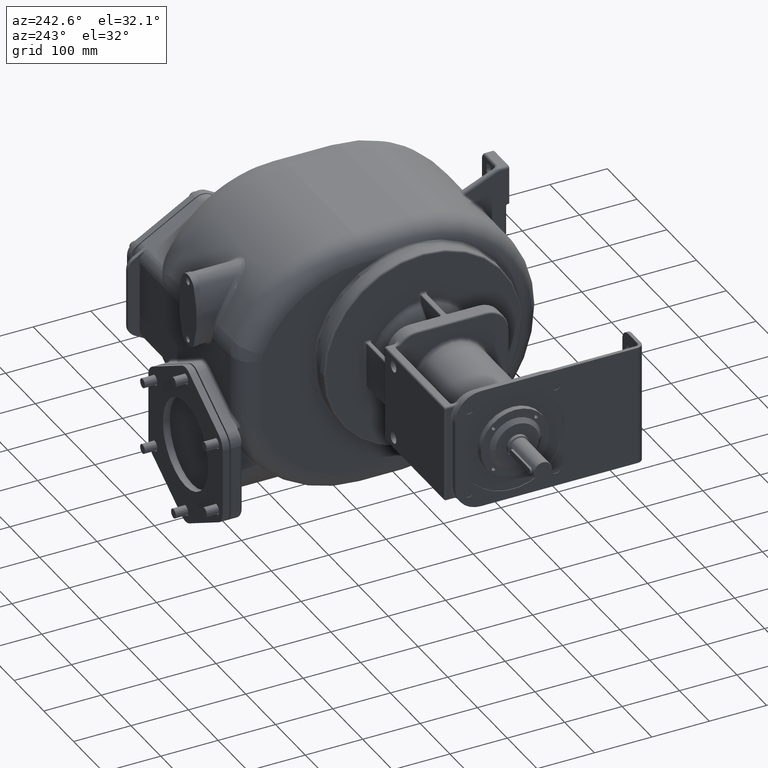
[diagram: clean part render]
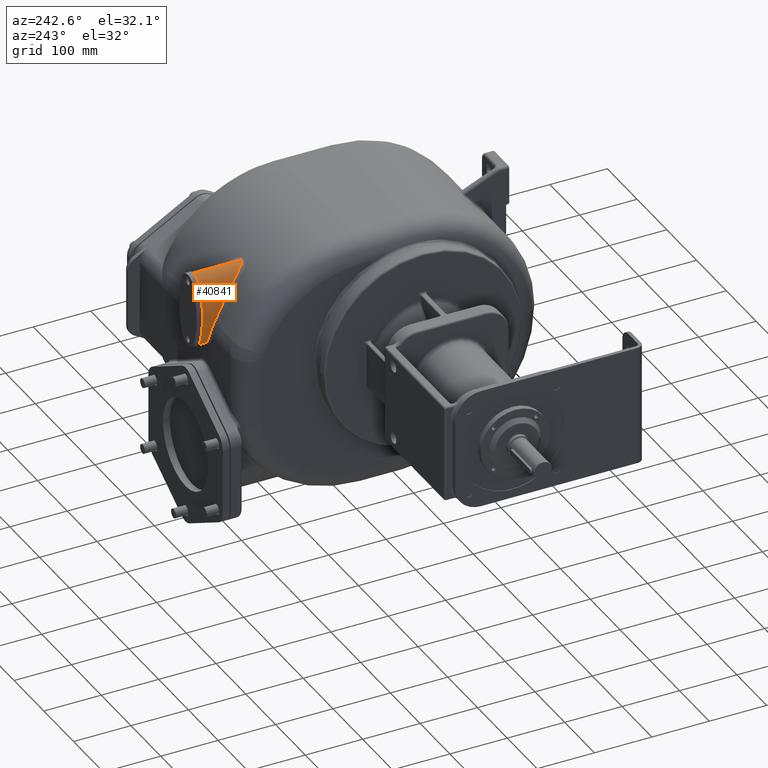
[diagram: same view with one face highlighted and labeled with its STEP entity id]
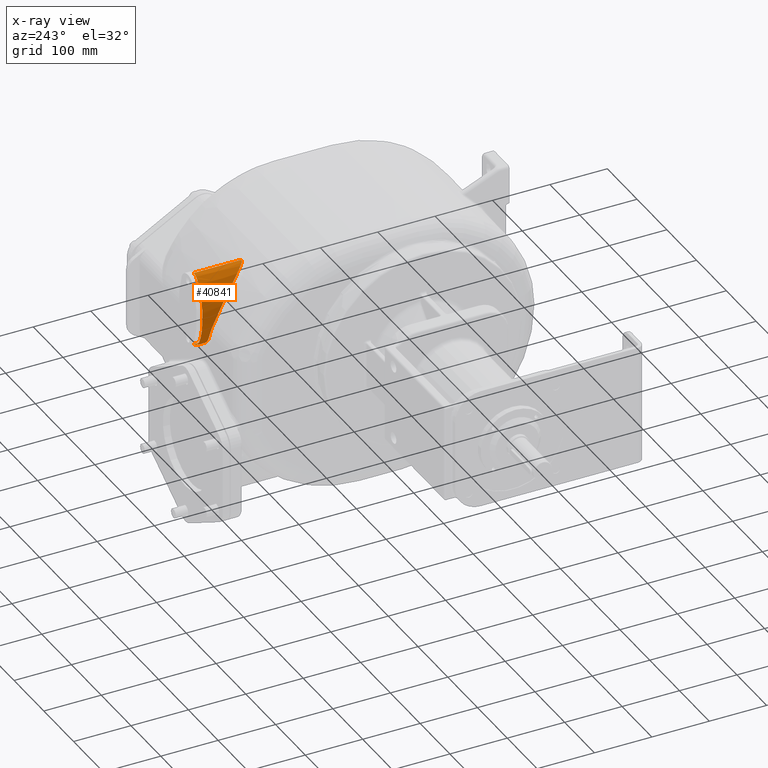
[diagram: x-ray of the same camera — body ghosted, the highlighted face saturated]
A machine part, auxiliary view. The second image highlights one B-rep face of the part: STEP entity #40841.
The next image is the same camera in x-ray: the body ghosted, the highlighted face saturated — about 0% of this face is hidden behind the body in this view.
In plain terms, the highlighted face is a SurfaceOfExtrusion surface.
Its self-contained STEP definition (entity closure, byte-faithful):
#16030=DIRECTION('',(0.E0,-1.E0,0.E0));
#16031=VECTOR('',#16030,8.265051908838E1);
#16032=CARTESIAN_POINT('',(-3.5E1,5.5E2,1.44E2));
#16033=LINE('',#16032,#16031);
#16113=CARTESIAN_POINT('',(-3.966103184337E1,5.5E2,1.432106858068E2));
#16114=CARTESIAN_POINT('',(-3.814912950606E1,5.5E2,1.437258939323E2));
#16115=CARTESIAN_POINT('',(-3.659727520801E1,5.5E2,1.44E2));
#16116=CARTESIAN_POINT('',(-3.5E1,5.5E2,1.44E2));
#16118=CARTESIAN_POINT('',(7.5E1,5.5E2,7.901E1));
#16119=DIRECTION('',(0.E0,1.E0,0.E0));
#16120=DIRECTION('',(-9.999999993641E-1,0.E0,-3.566129892870E-5));
#16121=AXIS2_PLACEMENT_3D('',#16118,#16119,#16120);
#16123=CARTESIAN_POINT('',(-6.472010696731E1,5.5E2,8.785826022694E1));
#16124=CARTESIAN_POINT('',(-6.453210363139E1,5.5E2,9.081935081010E1));
#16125=CARTESIAN_POINT('',(-6.397384926539E1,5.5E2,9.660215420334E1));
#16126=CARTESIAN_POINT('',(-6.261894921565E1,5.5E2,1.048805760900E2));
#16127=CARTESIAN_POINT('',(-6.074623279421E1,5.5E2,1.127629869704E2));
#16128=CARTESIAN_POINT('',(-5.832575870255E1,5.5E2,1.202264886041E2));
#16129=CARTESIAN_POINT('',(-5.579668316413E1,5.5E2,1.260544999354E2));
#16130=CARTESIAN_POINT('',(-5.339817940705E1,5.5E2,1.304299337417E2));
#16131=CARTESIAN_POINT('',(-5.138255971138E1,5.5E2,1.335457511678E2));
#16132=CARTESIAN_POINT('',(-4.910942079595E1,5.5E2,1.364646253319E2));
#16133=CARTESIAN_POINT('',(-4.694857674909E1,5.5E2,1.386931618421E2));
#16134=CARTESIAN_POINT('',(-4.500516430877E1,5.5E2,1.403117662393E2));
#16135=CARTESIAN_POINT('',(-4.341768780564E1,5.5E2,1.414263626354E2));
#16136=CARTESIAN_POINT('',(-4.166893095843E1,5.5E2,1.424176164823E2));
#16137=CARTESIAN_POINT('',(-4.036314850696E1,5.5E2,1.429714268275E2));
#16138=CARTESIAN_POINT('',(-3.966103184337E1,5.5E2,1.432106858068E2));
#16140=CARTESIAN_POINT('',(-6.398751303528E1,5.296957236666E2,
6.225570505364E1));
#16141=CARTESIAN_POINT('',(-6.407352949365E1,5.294212569527E2,
6.295476024573E1));
#16142=CARTESIAN_POINT('',(-6.423499161383E1,5.288613834479E2,
6.436072268062E1));
#16143=CARTESIAN_POINT('',(-6.444500103993E1,5.279882017365E2,
6.649144438663E1));
#16144=CARTESIAN_POINT('',(-6.462220034269E1,5.270820922718E2,
6.863982950785E1));
#16145=CARTESIAN_POINT('',(-6.476616521290E1,5.261433279637E2,
7.080247253430E1));
#16146=CARTESIAN_POINT('',(-6.487656923910E1,5.251723284520E2,
7.297595278657E1));
#16147=CARTESIAN_POINT('',(-6.495319126606E1,5.241695413920E2,
7.515696908389E1));
#16148=CARTESIAN_POINT('',(-6.499589886287E1,5.231356230947E2,
7.734208594331E1));
#16149=CARTESIAN_POINT('',(-6.500465893294E1,5.220714068531E2,
7.952779037696E1));
#16150=CARTESIAN_POINT('',(-6.497954220934E1,5.209778150036E2,
8.171061673180E1));
#16151=CARTESIAN_POINT('',(-6.492070370080E1,5.198557197157E2,
8.388756796714E1));
#16152=CARTESIAN_POINT('',(-6.482836194525E1,5.187060281706E2,
8.605578543522E1));
#16153=CARTESIAN_POINT('',(-6.470279880585E1,5.175297442944E2,
8.821243928898E1));
#16154=CARTESIAN_POINT('',(-6.454436054706E1,5.163280393803E2,
9.035471487905E1));
#16155=CARTESIAN_POINT('',(-6.435345568866E1,5.151021498031E2,
9.247985064680E1));
#16156=CARTESIAN_POINT('',(-6.413055203537E1,5.138534244843E2,
9.458515355608E1));
#16157=CARTESIAN_POINT('',(-6.387617431661E1,5.125833346688E2,
9.666800231307E1));
#16158=CARTESIAN_POINT('',(-6.359090490752E1,5.112934107673E2,
9.872583047304E1));
#16159=CARTESIAN_POINT('',(-6.327538575991E1,5.099853363384E2,
1.007561156723E2));
#16160=CARTESIAN_POINT('',(-6.293032027423E1,5.086609023051E2,
1.027563785122E2));
#16161=CARTESIAN_POINT('',(-6.255647167558E1,5.073219675417E2,
1.047242020099E2));
#16162=CARTESIAN_POINT('',(-6.215466553754E1,5.059705746258E2,
1.066572245825E2));
#16163=CARTESIAN_POINT('',(-6.172579486454E1,5.046088364646E2,
1.085531295327E2));
#16164=CARTESIAN_POINT('',(-6.127081355963E1,5.032389571957E2,
1.104096891440E2));
#16165=CARTESIAN_POINT('',(-6.079072112913E1,5.018632612435E2,
1.122248210597E2));
#16166=CARTESIAN_POINT('',(-6.028658669328E1,5.004840859456E2,
1.139964913823E2));
#16167=CARTESIAN_POINT('',(-5.975956561227E1,4.991040035804E2,
1.157226819251E2));
#16168=CARTESIAN_POINT('',(-5.921092649391E1,4.977258227398E2,
1.174013446486E2));
#16169=CARTESIAN_POINT('',(-5.864203236910E1,4.963523392167E2,
1.190305056128E2));
#16170=CARTESIAN_POINT('',(-5.805434471513E1,4.949865986668E2,
1.206082756190E2));
#16171=CARTESIAN_POINT('',(-5.744945272713E1,4.936317067112E2,
1.221328010021E2));
#16172=CARTESIAN_POINT('',(-5.682906985676E1,4.922908130938E2,
1.236023215321E2));
#16173=CARTESIAN_POINT('',(-5.619489369456E1,4.909670581226E2,
1.250154947647E2));
#16174=CARTESIAN_POINT('',(-5.554880168413E1,4.896635663606E2,
1.263709361848E2));
#16175=CARTESIAN_POINT('',(-5.489268771818E1,4.883834100764E2,
1.276676153689E2));
#16176=CARTESIAN_POINT('',(-5.422835271734E1,4.871293629438E2,
1.289049967071E2));
#16177=CARTESIAN_POINT('',(-5.355783233489E1,4.859042088497E2,
1.300824132667E2));
#16178=CARTESIAN_POINT('',(-5.288294445230E1,4.847105629201E2,
1.311998864298E2));
#16179=CARTESIAN_POINT('',(-5.220559767593E1,4.835507833003E2,
1.322575105633E2));
#16180=CARTESIAN_POINT('',(-5.152777759640E1,4.824272611419E2,
1.332555182517E2));
#16181=CARTESIAN_POINT('',(-5.085135444617E1,4.813422940430E2,
1.341945372204E2));
#16182=CARTESIAN_POINT('',(-5.017847192138E1,4.802979819425E2,
1.350750451064E2));
#16183=CARTESIAN_POINT('',(-4.951104440673E1,4.792964614709E2,
1.358980585320E2));
#16184=CARTESIAN_POINT('',(-4.885121169045E1,4.783395225587E2,
1.366645125279E2));
#16185=CARTESIAN_POINT('',(-4.820102108075E1,4.774289387549E2,
1.373756778962E2));
#16186=CARTESIAN_POINT('',(-4.756237796573E1,4.765660532394E2,
1.380331416247E2));
#16187=CARTESIAN_POINT('',(-4.693741230409E1,4.757520469096E2,
1.386384277155E2));
#16188=CARTESIAN_POINT('',(-4.632761557348E1,4.749874770866E2,
1.391937952421E2));
#16189=CARTESIAN_POINT('',(-4.573483079949E1,4.742725353141E2,
1.397012333367E2));
#16190=CARTESIAN_POINT('',(-4.516018616651E1,4.736070023861E2,
1.401633843385E2));
#16191=CARTESIAN_POINT('',(-4.460493357605E1,4.729900245733E2,
1.405827353562E2));
#16192=CARTESIAN_POINT('',(-4.406979670635E1,4.724205308480E2,
1.409621146284E2));
#16193=CARTESIAN_POINT('',(-4.355512278482E1,4.718966145132E2,
1.413044621868E2));
#16194=CARTESIAN_POINT('',(-4.306110534207E1,4.714163453978E2,
1.416126416502E2));
#16195=CARTESIAN_POINT('',(-4.258735465473E1,4.709772681310E2,
1.418896635604E2));
#16196=CARTESIAN_POINT('',(-4.213342448063E1,4.705767390589E2,
1.421383154245E2));
#16197=CARTESIAN_POINT('',(-4.169855873468E1,4.702122584498E2,
1.423613070130E2));
#16198=CARTESIAN_POINT('',(-4.128187944316E1,4.698810143018E2,
1.425611517228E2));
#16199=CARTESIAN_POINT('',(-4.088236701489E1,4.695804990291E2,
1.427401809261E2));
#16200=CARTESIAN_POINT('',(-4.049906360083E1,4.693082680328E2,
1.429004679111E2));
#16201=CARTESIAN_POINT('',(-4.013071270458E1,4.690618401011E2,
1.430439899097E2));
#16202=CARTESIAN_POINT('',(-3.977639205995E1,4.688392028198E2,
1.431723875911E2));
#16203=CARTESIAN_POINT('',(-3.943493561869E1,4.686382781794E2,
1.432872191442E2));
#16204=CARTESIAN_POINT('',(-3.910522554867E1,4.684572022386E2,
1.433898481750E2));
#16205=CARTESIAN_POINT('',(-3.878644739969E1,4.682944484324E2,
1.434814031010E2));
#16206=CARTESIAN_POINT('',(-3.847744336144E1,4.681484531479E2,
1.435629836661E2));
#16207=CARTESIAN_POINT('',(-3.817737060395E1,4.680178913415E2,
1.436354768538E2));
#16208=CARTESIAN_POINT('',(-3.788540636824E1,4.679016505745E2,
1.436996701908E2));
#16209=CARTESIAN_POINT('',(-3.760052384202E1,4.677986193908E2,
1.437562948113E2));
#16210=CARTESIAN_POINT('',(-3.732216555320E1,4.677079305105E2,
1.438059004741E2));
#16211=CARTESIAN_POINT('',(-3.704965709699E1,4.676288609064E2,
1.438489988994E2));
#16212=CARTESIAN_POINT('',(-3.678225570662E1,4.675606572323E2,
1.438860442104E2));
#16213=CARTESIAN_POINT('',(-3.651921522768E1,4.675026956691E2,
1.439174258231E2));
#16214=CARTESIAN_POINT('',(-3.625958704879E1,4.674544713314E2,
1.439434866336E2));
#16215=CARTESIAN_POINT('',(-3.600279922805E1,4.674155633019E2,
1.439644627821E2));
#16216=CARTESIAN_POINT('',(-3.574870826057E1,4.673857159015E2,
1.439805245076E2));
#16217=CARTESIAN_POINT('',(-3.549701846210E1,4.673646870041E2,
1.439918348086E2));
#16218=CARTESIAN_POINT('',(-3.524749264745E1,4.673522166432E2,
1.439985322754E2));
#16219=CARTESIAN_POINT('',(-3.508228757037E1,4.673494808430E2,
1.439999999148E2));
#16220=CARTESIAN_POINT('',(-3.5E1,4.673494809116E2,1.44E2));
#16222=CARTESIAN_POINT('',(-5.760023080432E1,5.343677368501E2,
3.625403973931E1));
#16223=CARTESIAN_POINT('',(-5.774575781442E1,5.343754709181E2,
3.661523898136E1));
#16224=CARTESIAN_POINT('',(-5.803264482870E1,5.343850431062E2,
3.734342960817E1));
#16225=CARTESIAN_POINT('',(-5.845056363898E1,5.343809689313E2,
3.845286489599E1));
#16226=CARTESIAN_POINT('',(-5.885543755180E1,5.343577275603E2,
3.957727049665E1));
#16227=CARTESIAN_POINT('',(-5.924711242484E1,5.343146430646E2,
4.071554771470E1));
#16228=CARTESIAN_POINT('',(-5.962527500089E1,5.342511619423E2,
4.186604596077E1));
#16229=CARTESIAN_POINT('',(-5.998972599730E1,5.341667589816E2,
4.302728020326E1));
#16230=CARTESIAN_POINT('',(-6.034037727221E1,5.340609780538E2,
4.419799705672E1));
#16231=CARTESIAN_POINT('',(-6.067725541292E1,5.339334023509E2,
4.537725306140E1));
#16232=CARTESIAN_POINT('',(-6.100038365662E1,5.337836117311E2,
4.656405414848E1));
#16233=CARTESIAN_POINT('',(-6.130979315221E1,5.336112701705E2,
4.775738049089E1));
#16234=CARTESIAN_POINT('',(-6.160552717305E1,5.334160790045E2,
4.895620025844E1));
#16235=CARTESIAN_POINT('',(-6.188764832108E1,5.331977519676E2,
5.015949568709E1));
#16236=CARTESIAN_POINT('',(-6.215626740014E1,5.329560563344E2,
5.136640389232E1));
#16237=CARTESIAN_POINT('',(-6.241150230606E1,5.326907619920E2,
5.257606148935E1));
#16238=CARTESIAN_POINT('',(-6.265348854906E1,5.324016541215E2,
5.378765217338E1));
#16239=CARTESIAN_POINT('',(-6.288238847961E1,5.320885524191E2,
5.500047125842E1));
#16240=CARTESIAN_POINT('',(-6.309837094978E1,5.317512490777E2,
5.621384298839E1));
#16241=CARTESIAN_POINT('',(-6.330157858265E1,5.313896204085E2,
5.742692251274E1));
#16242=CARTESIAN_POINT('',(-6.349213860510E1,5.310036451887E2,
5.863869942256E1));
#16243=CARTESIAN_POINT('',(-6.367020054588E1,5.305933003653E2,
5.984820254995E1));
#16244=CARTESIAN_POINT('',(-6.383593228217E1,5.301586295721E2,
6.105449574453E1));
#16245=CARTESIAN_POINT('',(-6.393830972538E1,5.298527225742E2,
6.185583224438E1));
#16246=CARTESIAN_POINT('',(-6.398751303528E1,5.296957236666E2,
6.225570505364E1));
#16248=CARTESIAN_POINT('',(-3.5E1,5.340003076231E2,1.400000025913E1));
#16249=CARTESIAN_POINT('',(-3.514508139363E1,5.340002052080E2,
1.399999992704E1));
#16250=CARTESIAN_POINT('',(-3.543541369180E1,5.340000513192E2,
1.400456217099E1));
#16251=CARTESIAN_POINT('',(-3.587112623772E1,5.339999744518E2,
1.402511817605E1));
#16252=CARTESIAN_POINT('',(-3.630756809037E1,5.340000520007E2,
1.405946557138E1));
#16253=CARTESIAN_POINT('',(-3.674502665648E1,5.340002854455E2,
1.410773418400E1));
#16254=CARTESIAN_POINT('',(-3.718381262427E1,5.340006757011E2,
1.417009988057E1));
#16255=CARTESIAN_POINT('',(-3.762424524230E1,5.340012245075E2,
1.424679065929E1));
#16256=CARTESIAN_POINT('',(-3.806665949016E1,5.340019349744E2,
1.433809018728E1));
#16257=CARTESIAN_POINT('',(-3.851134568056E1,5.340028108968E2,
1.444432549453E1));
#16258=CARTESIAN_POINT('',(-3.895865392799E1,5.340038573589E2,
1.456589202671E1));
#16259=CARTESIAN_POINT('',(-3.940886788685E1,5.340050807417E2,
1.470322533911E1));
#16260=CARTESIAN_POINT('',(-3.986229095471E1,5.340064881660E2,
1.485682087604E1));
#16261=CARTESIAN_POINT('',(-4.031926194047E1,5.340080888821E2,
1.502724874877E1));
#16262=CARTESIAN_POINT('',(-4.078002839131E1,5.340098932108E2,
1.521510686504E1));
#16263=CARTESIAN_POINT('',(-4.124492305849E1,5.340119131479E2,
1.542108967131E1));
#16264=CARTESIAN_POINT('',(-4.171422229966E1,5.340141631201E2,
1.564593875783E1));
#16265=CARTESIAN_POINT('',(-4.218817342937E1,5.340166588335E2,
1.589044815804E1));
#16266=CARTESIAN_POINT('',(-4.266708652640E1,5.340194189664E2,
1.615551904533E1));
#16267=CARTESIAN_POINT('',(-4.315115982991E1,5.340224649053E2,
1.644206904978E1));
#16268=CARTESIAN_POINT('',(-4.364065119427E1,5.340258207499E2,
1.675112662280E1));
#16269=CARTESIAN_POINT('',(-4.413578794247E1,5.340295145071E2,
1.708379014487E1));
#16270=CARTESIAN_POINT('',(-4.463672513518E1,5.340335776314E2,
1.744119478044E1));
#16271=CARTESIAN_POINT('',(-4.514367906066E1,5.340380456090E2,
1.782461085928E1));
#16272=CARTESIAN_POINT('',(-4.565676527776E1,5.340429622226E2,
1.823533312742E1));
#16273=CARTESIAN_POINT('',(-4.617609933106E1,5.340483788269E2,
1.867475303150E1));
#16274=CARTESIAN_POINT('',(-4.670177781195E1,5.340543545931E2,
1.914435491082E1));
#16275=CARTESIAN_POINT('',(-4.723381075542E1,5.340609410196E2,
1.964565540410E1));
#16276=CARTESIAN_POINT('',(-4.777223256953E1,5.340681956858E2,
2.018030864202E1));
#16277=CARTESIAN_POINT('',(-4.831698798127E1,5.340761804400E2,
2.075000547354E1));
#16278=CARTESIAN_POINT('',(-4.886798698657E1,5.340849524474E2,
2.135652492555E1));
#16279=CARTESIAN_POINT('',(-4.942510248824E1,5.340945764442E2,
2.200174143144E1));
#16280=CARTESIAN_POINT('',(-4.998811184793E1,5.341051192261E2,
2.268755836155E1));
#16281=CARTESIAN_POINT('',(-5.055676875779E1,5.341166509277E2,
2.341599511473E1));
#16282=CARTESIAN_POINT('',(-5.113071220084E1,5.341292465108E2,
2.418907717443E1));
#16283=CARTESIAN_POINT('',(-5.170953362744E1,5.341429885724E2,
2.500891901942E1));
#16284=CARTESIAN_POINT('',(-5.229272120830E1,5.341579677987E2,
2.587765311782E1));
#16285=CARTESIAN_POINT('',(-5.287962953232E1,5.341742791552E2,
2.679736823378E1));
#16286=CARTESIAN_POINT('',(-5.346959654978E1,5.341920306828E2,
2.777028924458E1));
#16287=CARTESIAN_POINT('',(-5.406180250587E1,5.342113385365E2,
2.879855501183E1));
#16288=CARTESIAN_POINT('',(-5.465536908373E1,5.342323282666E2,
2.988436960974E1));
#16289=CARTESIAN_POINT('',(-5.524926317473E1,5.342551376371E2,
3.102983725568E1));
#16290=CARTESIAN_POINT('',(-5.584214142946E1,5.342799089971E2,
3.223659104065E1));
#16291=CARTESIAN_POINT('',(-5.643267743515E1,5.343067860077E2,
3.350638594366E1));
#16292=CARTESIAN_POINT('',(-5.701951082567E1,5.343358788764E2,
3.484102113391E1));
#16293=CARTESIAN_POINT('',(-5.740741393877E1,5.343568477857E2,
3.577547828721E1));
#16294=CARTESIAN_POINT('',(-5.760023080432E1,5.343677368501E2,
3.625403973931E1));
#16296=DIRECTION('',(-7.460842170952E-14,-1.E0,1.619623621954E-8));
#16297=VECTOR('',#16296,1.599969237688E1);
#16298=CARTESIAN_POINT('',(-3.5E1,5.5E2,1.4E1));
#16299=LINE('',#16298,#16297);
#16300=CARTESIAN_POINT('',(-3.981962421567E1,5.5E2,1.484430037684E1));
#16301=CARTESIAN_POINT('',(-4.047067438299E1,5.5E2,1.507390286553E1));
#16302=CARTESIAN_POINT('',(-4.168958436229E1,5.5E2,1.559786199104E1));
#16303=CARTESIAN_POINT('',(-4.333536295833E1,5.5E2,1.652592322453E1));
#16304=CARTESIAN_POINT('',(-4.483841490030E1,5.5E2,1.756508078476E1));
#16305=CARTESIAN_POINT('',(-4.668729124931E1,5.5E2,1.907142407293E1));
#16306=CARTESIAN_POINT('',(-4.875566895807E1,5.5E2,2.114328108971E1));
#16307=CARTESIAN_POINT('',(-5.094519639554E1,5.5E2,2.385720729708E1));
#16308=CARTESIAN_POINT('',(-5.289796122294E1,5.5E2,2.675542603525E1));
#16309=CARTESIAN_POINT('',(-5.523519848307E1,5.5E2,3.082711780325E1));
#16310=CARTESIAN_POINT('',(-5.772386443604E1,5.5E2,3.625368041806E1));
#16311=CARTESIAN_POINT('',(-6.014468494369E1,5.5E2,4.320579364137E1));
#16312=CARTESIAN_POINT('',(-6.206484884717E1,5.5E2,5.054761059629E1));
#16313=CARTESIAN_POINT('',(-6.351692758333E1,5.5E2,5.825377815578E1));
#16314=CARTESIAN_POINT('',(-6.417794925780E1,5.5E2,6.363021146372E1));
#16315=CARTESIAN_POINT('',(-6.442914772397E1,5.5E2,6.638016369994E1));
#16332=CARTESIAN_POINT('',(-3.5E1,5.5E2,1.4E1));
#16333=CARTESIAN_POINT('',(-3.665471331296E1,5.5E2,1.4E1));
#16334=CARTESIAN_POINT('',(-3.825911025407E1,5.5E2,1.429396200477E1));
#16335=CARTESIAN_POINT('',(-3.981962421567E1,5.5E2,1.484430037684E1));
#16571=CARTESIAN_POINT('',(-6.442914772401E1,5.5E2,6.638016370033E1));
#16572=CARTESIAN_POINT('',(-6.481275484510E1,5.5E2,7.057963703550E1));
#16573=CARTESIAN_POINT('',(-6.500014984757E1,5.5E2,7.478804990192E1));
#16574=CARTESIAN_POINT('',(-6.499999991098E1,5.5E2,7.900500741815E1));
#19141=VERTEX_POINT('',#16140);
#19142=VERTEX_POINT('',#16220);
#19145=CARTESIAN_POINT('',(-3.5E1,5.5E2,1.4E1));
#19146=CARTESIAN_POINT('',(-3.5E1,5.340003076231E2,1.400000025913E1));
#19147=VERTEX_POINT('',#19145);
#19148=VERTEX_POINT('',#19146);
#19149=CARTESIAN_POINT('',(-3.5E1,5.5E2,1.44E2));
#19150=VERTEX_POINT('',#19149);
#19268=VERTEX_POINT('',#16294);
#20811=CARTESIAN_POINT('',(-3.981962421567E1,5.5E2,1.484430037684E1));
#20813=VERTEX_POINT('',#20811);
#20814=CARTESIAN_POINT('',(-6.442914772401E1,5.5E2,6.638016370033E1));
#20815=CARTESIAN_POINT('',(-6.499999991098E1,5.5E2,7.900500741815E1));
#20816=VERTEX_POINT('',#20814);
#20817=VERTEX_POINT('',#20815);
#20818=CARTESIAN_POINT('',(-6.472010696727E1,5.5E2,8.785826022754E1));
#20819=VERTEX_POINT('',#20818);
#20820=CARTESIAN_POINT('',(-3.966103184337E1,5.5E2,1.432106858068E2));
#20822=VERTEX_POINT('',#20820);
#40816=CARTESIAN_POINT('',(-3.5E1,5.5E2,7.9E1));
#40817=DIRECTION('',(0.E0,1.E0,0.E0));
#40818=DIRECTION('',(0.E0,0.E0,-1.E0));
#40819=AXIS2_PLACEMENT_3D('',#40816,#40817,#40818);
#40821=DIRECTION('',(0.E0,1.E0,0.E0));
#40822=VECTOR('',#40821,1.E0);
#40823=SURFACE_OF_LINEAR_EXTRUSION('',#40820,#40822);
#40824=ORIENTED_EDGE('',*,*,#40763,.T.);
#40826=ORIENTED_EDGE('',*,*,#40825,.T.);
#40827=ORIENTED_EDGE('',*,*,#40811,.T.);
#40828=ORIENTED_EDGE('',*,*,#40702,.T.);
#40829=ORIENTED_EDGE('',*,*,#26299,.F.);
#40830=ORIENTED_EDGE('',*,*,#26364,.F.);
#40831=ORIENTED_EDGE('',*,*,#40365,.F.);
#40832=ORIENTED_EDGE('',*,*,#40697,.F.);
#40834=ORIENTED_EDGE('',*,*,#40833,.T.);
#40836=ORIENTED_EDGE('',*,*,#40835,.T.);
#40838=ORIENTED_EDGE('',*,*,#40837,.T.);
#40839=EDGE_LOOP('',(#40824,#40826,#40827,#40828,#40829,#40830,#40831,#40832,
#40834,#40836,#40838));
#40840=FACE_OUTER_BOUND('',#40839,.F.);
#40841=ADVANCED_FACE('',(#40840),#40823,.T.);
#16117=B_SPLINE_CURVE_WITH_KNOTS('',3,(#16113,#16114,#16115,#16116),
.UNSPECIFIED.,.F.,.F.,(4,4),(0.E0,1.E0),.UNSPECIFIED.);
#16122=CIRCLE('',#16121,1.4E2);
#16139=B_SPLINE_CURVE_WITH_KNOTS('',3,(#16123,#16124,#16125,#16126,#16127,
#16128,#16129,#16130,#16131,#16132,#16133,#16134,#16135,#16136,#16137,#16138),
.UNSPECIFIED.,.F.,.F.,(4,1,1,1,1,1,1,1,1,1,1,1,1,4),(0.E0,1.25E-1,2.5E-1,
3.75E-1,5.E-1,6.25E-1,6.875E-1,7.5E-1,8.125E-1,8.75E-1,9.0625E-1,9.375E-1,
9.6875E-1,1.E0),.UNSPECIFIED.);
#16221=B_SPLINE_CURVE_WITH_KNOTS('',3,(#16140,#16141,#16142,#16143,#16144,
#16145,#16146,#16147,#16148,#16149,#16150,#16151,#16152,#16153,#16154,#16155,
#16156,#16157,#16158,#16159,#16160,#16161,#16162,#16163,#16164,#16165,#16166,
#16167,#16168,#16169,#16170,#16171,#16172,#16173,#16174,#16175,#16176,#16177,
#16178,#16179,#16180,#16181,#16182,#16183,#16184,#16185,#16186,#16187,#16188,
#16189,#16190,#16191,#16192,#16193,#16194,#16195,#16196,#16197,#16198,#16199,
#16200,#16201,#16202,#16203,#16204,#16205,#16206,#16207,#16208,#16209,#16210,
#16211,#16212,#16213,#16214,#16215,#16216,#16217,#16218,#16219,#16220),
.UNSPECIFIED.,.F.,.F.,(4,1,1,1,1,1,1,1,1,1,1,1,1,1,1,1,1,1,1,1,1,1,1,1,1,1,1,1,
1,1,1,1,1,1,1,1,1,1,1,1,1,1,1,1,1,1,1,1,1,1,1,1,1,1,1,1,1,1,1,1,1,1,1,1,1,1,1,1,
1,1,1,1,1,1,1,1,1,1,4),(0.E0,1.282051282051E-2,2.564102564103E-2,
3.846153846154E-2,5.128205128205E-2,6.410256410256E-2,7.692307692308E-2,
8.974358974359E-2,1.025641025641E-1,1.153846153846E-1,1.282051282051E-1,
1.410256410256E-1,1.538461538462E-1,1.666666666667E-1,1.794871794872E-1,
1.923076923077E-1,2.051282051282E-1,2.179487179487E-1,2.307692307692E-1,
2.435897435897E-1,2.564102564103E-1,2.692307692308E-1,2.820512820513E-1,
2.948717948718E-1,3.076923076923E-1,3.205128205128E-1,3.333333333333E-1,
3.461538461538E-1,3.589743589744E-1,3.717948717949E-1,3.846153846154E-1,
3.974358974359E-1,4.102564102564E-1,4.230769230769E-1,4.358974358974E-1,
4.487179487179E-1,4.615384615385E-1,4.743589743590E-1,4.871794871795E-1,5.E-1,
5.128205128205E-1,5.256410256410E-1,5.384615384615E-1,5.512820512821E-1,
5.641025641026E-1,5.769230769231E-1,5.897435897436E-1,6.025641025641E-1,
6.153846153846E-1,6.282051282051E-1,6.410256410256E-1,6.538461538462E-1,
6.666666666667E-1,6.794871794872E-1,6.923076923077E-1,7.051282051282E-1,
7.179487179487E-1,7.307692307692E-1,7.435897435897E-1,7.564102564103E-1,
7.692307692308E-1,7.820512820513E-1,7.948717948718E-1,8.076923076923E-1,
8.205128205128E-1,8.333333333333E-1,8.461538461538E-1,8.589743589744E-1,
8.717948717949E-1,8.846153846154E-1,8.974358974359E-1,9.102564102564E-1,
9.230769230769E-1,9.358974358974E-1,9.487179487179E-1,9.615384615385E-1,
9.743589743590E-1,9.871794871795E-1,1.E0),.UNSPECIFIED.);
#16247=B_SPLINE_CURVE_WITH_KNOTS('',3,(#16222,#16223,#16224,#16225,#16226,
#16227,#16228,#16229,#16230,#16231,#16232,#16233,#16234,#16235,#16236,#16237,
#16238,#16239,#16240,#16241,#16242,#16243,#16244,#16245,#16246),.UNSPECIFIED.,
.F.,.F.,(4,1,1,1,1,1,1,1,1,1,1,1,1,1,1,1,1,1,1,1,1,1,4),(0.E0,4.545454545455E-2,
9.090909090909E-2,1.363636363636E-1,1.818181818182E-1,2.272727272727E-1,
2.727272727273E-1,3.181818181818E-1,3.636363636364E-1,4.090909090909E-1,
4.545454545455E-1,5.E-1,5.454545454545E-1,5.909090909091E-1,6.363636363636E-1,
6.818181818182E-1,7.272727272727E-1,7.727272727273E-1,8.181818181818E-1,
8.636363636364E-1,9.090909090909E-1,9.545454545455E-1,1.E0),.UNSPECIFIED.);
#16295=B_SPLINE_CURVE_WITH_KNOTS('',3,(#16248,#16249,#16250,#16251,#16252,
#16253,#16254,#16255,#16256,#16257,#16258,#16259,#16260,#16261,#16262,#16263,
#16264,#16265,#16266,#16267,#16268,#16269,#16270,#16271,#16272,#16273,#16274,
#16275,#16276,#16277,#16278,#16279,#16280,#16281,#16282,#16283,#16284,#16285,
#16286,#16287,#16288,#16289,#16290,#16291,#16292,#16293,#16294),.UNSPECIFIED.,
.F.,.F.,(4,1,1,1,1,1,1,1,1,1,1,1,1,1,1,1,1,1,1,1,1,1,1,1,1,1,1,1,1,1,1,1,1,1,1,
1,1,1,1,1,1,1,1,1,4),(0.E0,2.272727272727E-2,4.545454545455E-2,
6.818181818182E-2,9.090909090909E-2,1.136363636364E-1,1.363636363636E-1,
1.590909090909E-1,1.818181818182E-1,2.045454545455E-1,2.272727272727E-1,2.5E-1,
2.727272727273E-1,2.954545454545E-1,3.181818181818E-1,3.409090909091E-1,
3.636363636364E-1,3.863636363636E-1,4.090909090909E-1,4.318181818182E-1,
4.545454545455E-1,4.772727272727E-1,5.E-1,5.227272727273E-1,5.454545454545E-1,
5.681818181818E-1,5.909090909091E-1,6.136363636364E-1,6.363636363636E-1,
6.590909090909E-1,6.818181818182E-1,7.045454545455E-1,7.272727272727E-1,7.5E-1,
7.727272727273E-1,7.954545454545E-1,8.181818181818E-1,8.409090909091E-1,
8.636363636364E-1,8.863636363636E-1,9.090909090909E-1,9.318181818182E-1,
9.545454545455E-1,9.772727272727E-1,1.E0),.UNSPECIFIED.);
#16316=B_SPLINE_CURVE_WITH_KNOTS('',3,(#16300,#16301,#16302,#16303,#16304,
#16305,#16306,#16307,#16308,#16309,#16310,#16311,#16312,#16313,#16314,#16315),
.UNSPECIFIED.,.F.,.F.,(4,1,1,1,1,1,1,1,1,1,1,1,1,4),(0.E0,3.125E-2,6.25E-2,
9.375E-2,1.25E-1,1.875E-1,2.5E-1,3.125E-1,3.75E-1,5.E-1,6.25E-1,7.5E-1,8.75E-1,
1.E0),.UNSPECIFIED.);
#16336=B_SPLINE_CURVE_WITH_KNOTS('',3,(#16332,#16333,#16334,#16335),
.UNSPECIFIED.,.F.,.F.,(4,4),(0.E0,1.E0),.UNSPECIFIED.);
#16575=B_SPLINE_CURVE_WITH_KNOTS('',3,(#16571,#16572,#16573,#16574),
.UNSPECIFIED.,.F.,.F.,(4,4),(0.E0,1.E0),.UNSPECIFIED.);
#26299=EDGE_CURVE('',#19141,#19142,#16221,.T.);
#26364=EDGE_CURVE('',#19268,#19141,#16247,.T.);
#40365=EDGE_CURVE('',#19148,#19268,#16295,.T.);
#40697=EDGE_CURVE('',#19147,#19148,#16299,.T.);
#40702=EDGE_CURVE('',#19150,#19142,#16033,.T.);
#40763=EDGE_CURVE('',#20817,#20819,#16122,.T.);
#40811=EDGE_CURVE('',#20822,#19150,#16117,.T.);
#40820=ELLIPSE('',#40819,6.5E1,3.E1);
#40825=EDGE_CURVE('',#20819,#20822,#16139,.T.);
#40833=EDGE_CURVE('',#19147,#20813,#16336,.T.);
#40835=EDGE_CURVE('',#20813,#20816,#16316,.T.);
#40837=EDGE_CURVE('',#20816,#20817,#16575,.T.);